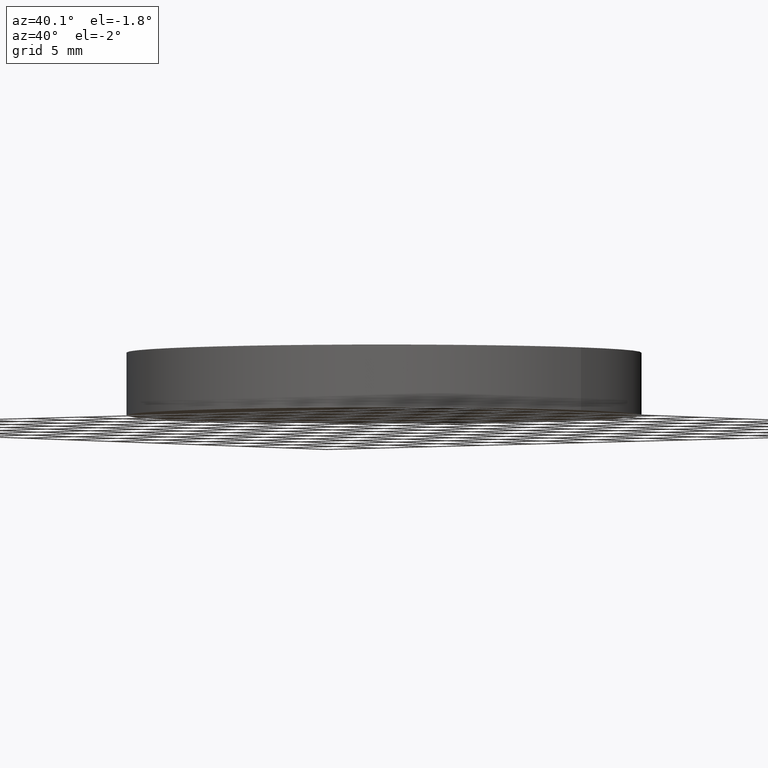
[diagram: clean part render]
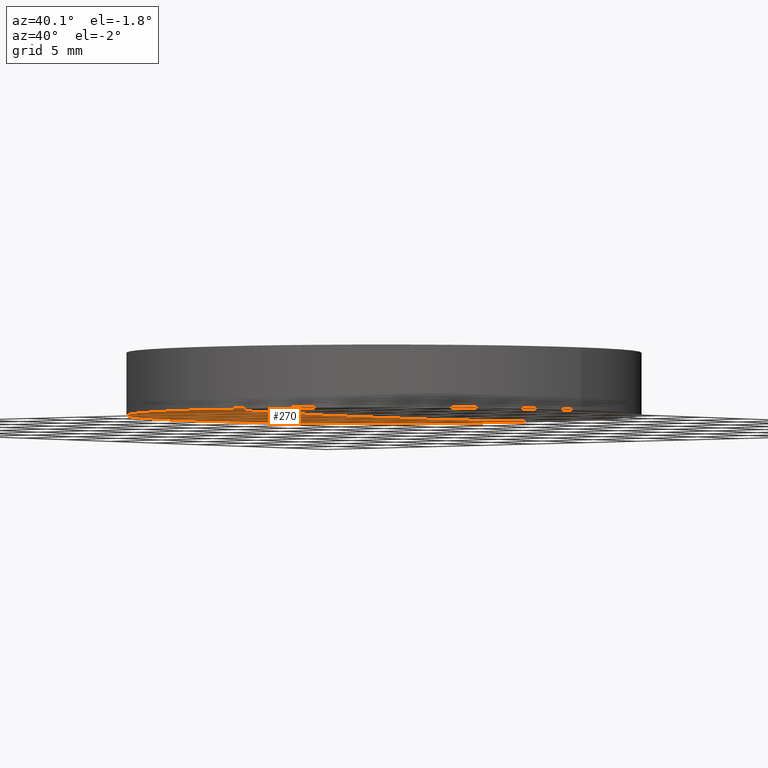
[diagram: same view with one face highlighted and labeled with its STEP entity id]
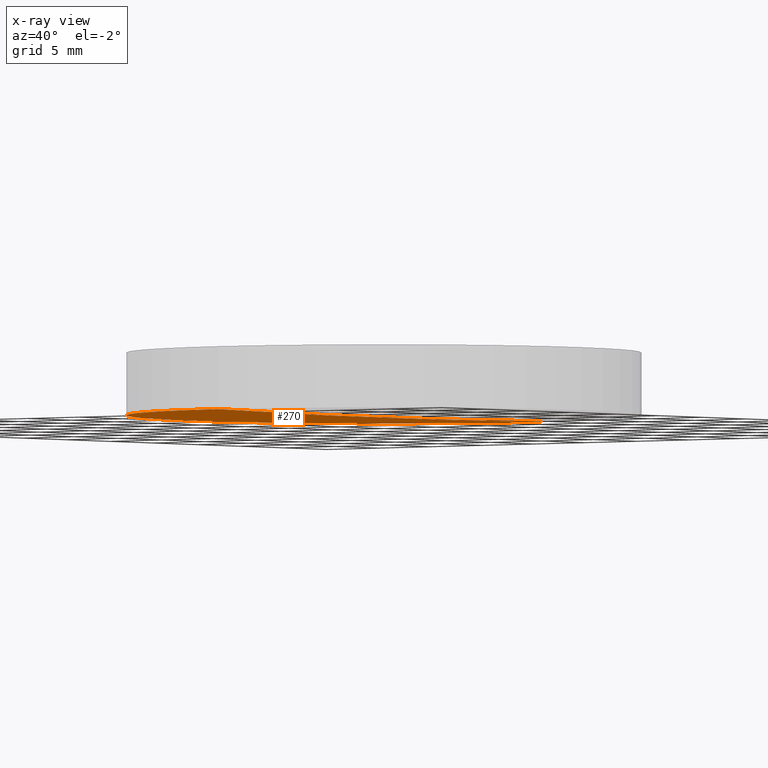
[diagram: x-ray of the same camera — body ghosted, the highlighted face saturated]
A machine part, auxiliary view. The second image highlights one B-rep face of the part: STEP entity #270.
The next image is the same camera in x-ray: the body ghosted, the highlighted face saturated — about 0% of this face is hidden behind the body in this view.
In plain terms, the highlighted face is a freeform B-spline surface patch.
Its self-contained STEP definition (entity closure, byte-faithful):
#1 = VERTEX_POINT ( 'NONE', #48 ) ;
#5 = DIRECTION ( 'NONE',  ( -1.456985596620939900E-018, -6.792982492034799900E-035, -1.000000000000000000 ) ) ;
#8 = VERTEX_POINT ( 'NONE', #273 ) ;
#11 = AXIS2_PLACEMENT_3D ( 'NONE', #174, #5, #237 ) ;
#17 = EDGE_CURVE ( 'NONE', #1, #8, #124, .T. ) ;
#37 = CIRCLE ( 'NONE', #134, 1037.000000000000000 ) ;
#45 =( BOUNDED_SURFACE ( )  B_SPLINE_SURFACE ( 3, 3, ( 
 ( #53, #186, #232, #102 ),
 ( #294, #127, #104, #143 ),
 ( #130, #129, #56, #50 ),
 ( #252, #275, #207, #272 ) ),
 .UNSPECIFIED., .F., .F., .F. ) 
 B_SPLINE_SURFACE_WITH_KNOTS ( ( 4, 4 ),
 ( 4, 4 ),
 ( 0.0000000000000000000, 1.000000000000000000 ),
 ( 0.0000000000000000000, 1.000000000000000000 ),
 .UNSPECIFIED. ) 
 GEOMETRIC_REPRESENTATION_ITEM ( )  RATIONAL_B_SPLINE_SURFACE ( (
 ( 1.000000000000000000, 0.9999715361965574300, 0.9999715361965574300, 1.000000000000000000),
 ( 0.9998847851211856200, 0.9998563245971967600, 0.9998563245971967600, 0.9998847851211856200),
 ( 0.9998847851211856200, 0.9998563245971967600, 0.9998563245971967600, 0.9998847851211856200),
 ( 1.000000000000000000, 0.9999715361965574300, 0.9999715361965574300, 1.000000000000000000) ) ) 
 REPRESENTATION_ITEM ( '' )  SURFACE ( )  );
#48 = CARTESIAN_POINT ( 'NONE',  ( -19.05000000000000400, 1.444773732675583000E-015, 0.1749918621754240600 ) ) ;
#50 = CARTESIAN_POINT ( 'NONE',  ( 8.673617379884035500E-014, 6.426931750395607600, -0.05974579827012176100 ) ) ;
#53 = CARTESIAN_POINT ( 'NONE',  ( -19.16097500826495200, -19.27857381669843300, 0.3562841417854567500 ) ) ;
#56 = CARTESIAN_POINT ( 'NONE',  ( -6.388918343689373300, 6.426931750395608500, -0.05974579827012020000 ) ) ;
#65 = ORIENTED_EDGE ( 'NONE', *, *, #266, .F. ) ;
#77 = DIRECTION ( 'NONE',  ( 0.0000000000000000000, -1.000000000000000000, -8.564883507233608400E-016 ) ) ;
#78 = DIRECTION ( 'NONE',  ( -1.456985596620939900E-018, -6.792982492034799900E-035, -1.000000000000000000 ) ) ;
#102 = CARTESIAN_POINT ( 'NONE',  ( 8.673617379884035500E-014, -19.27857381669843300, 0.1792167439958062500 ) ) ;
#104 = CARTESIAN_POINT ( 'NONE',  ( -6.388918343689373300, -6.426931750395570300, -0.05974579827012255900 ) ) ;
#124 = CIRCLE ( 'NONE', #260, 19.05000000000000100 ) ;
#127 = CARTESIAN_POINT ( 'NONE',  ( -12.77756390800491600, -6.426931750395570300, -0.0007080486260752468400 ) ) ;
#129 = CARTESIAN_POINT ( 'NONE',  ( -12.77756390800491600, 6.426931750395608500, -0.0007080486260728887000 ) ) ;
#130 = CARTESIAN_POINT ( 'NONE',  ( -19.16539115749171500, 6.426931750395607600, 0.1173624093453072000 ) ) ;
#134 = AXIS2_PLACEMENT_3D ( 'NONE', #251, #295, #77 ) ;
#143 = CARTESIAN_POINT ( 'NONE',  ( 8.673617379884035500E-014, -6.426931750395569400, -0.05974579827012412000 ) ) ;
#146 = CIRCLE ( 'NONE', #11, 19.05000000000000100 ) ;
#151 = EDGE_CURVE ( 'NONE', #169, #1, #146, .T. ) ;
#169 = VERTEX_POINT ( 'NONE', #246 ) ;
#174 = CARTESIAN_POINT ( 'NONE',  ( -4.662936703425659800E-015, -8.881784197001250400E-016, 0.1749918621754240300 ) ) ;
#182 = FACE_OUTER_BOUND ( 'NONE', #261, .T. ) ;
#186 = CARTESIAN_POINT ( 'NONE',  ( -12.77461966186307600, -19.27857381669842600, 0.2382408899773836900 ) ) ;
#207 = CARTESIAN_POINT ( 'NONE',  ( -6.387446189191116700, 19.27857381669846100, 0.1792167439958078100 ) ) ;
#209 = CARTESIAN_POINT ( 'NONE',  ( -4.662936703425659800E-015, -8.881784197001250400E-016, 0.1749918621754240300 ) ) ;
#224 = ORIENTED_EDGE ( 'NONE', *, *, #151, .T. ) ;
#232 = CARTESIAN_POINT ( 'NONE',  ( -6.387446189191116700, -19.27857381669842600, 0.1792167439958078100 ) ) ;
#233 = DIRECTION ( 'NONE',  ( 1.000000000000000000, 0.0000000000000000000, -1.422837496700137100E-018 ) ) ;
#237 = DIRECTION ( 'NONE',  ( 1.000000000000000000, 0.0000000000000000000, -1.422837496700137100E-018 ) ) ;
#246 = CARTESIAN_POINT ( 'NONE',  ( 3.410605131648479900E-013, -19.04999999999754900, 0.1749918621754119600 ) ) ;
#251 = CARTESIAN_POINT ( 'NONE',  ( 3.410605131648479900E-013, 1.136868377216160000E-013, 1037.000000000000000 ) ) ;
#252 = CARTESIAN_POINT ( 'NONE',  ( -19.16097500826495200, 19.27857381669846900, 0.3562841417854567500 ) ) ;
#256 = ORIENTED_EDGE ( 'NONE', *, *, #17, .T. ) ;
#260 = AXIS2_PLACEMENT_3D ( 'NONE', #209, #78, #233 ) ;
#261 = EDGE_LOOP ( 'NONE', ( #65, #224, #256 ) ) ;
#266 = EDGE_CURVE ( 'NONE', #169, #8, #37, .T. ) ;
#270 = ADVANCED_FACE ( 'NONE', ( #182 ), #45, .T. ) ;
#272 = CARTESIAN_POINT ( 'NONE',  ( 8.673617379884035500E-014, 19.27857381669846900, 0.1792167439958062500 ) ) ;
#273 = CARTESIAN_POINT ( 'NONE',  ( 3.410605131648479900E-013, 19.04999999999766700, 0.1749918621754119600 ) ) ;
#275 = CARTESIAN_POINT ( 'NONE',  ( -12.77461966186307600, 19.27857381669846100, 0.2382408899773836900 ) ) ;
#294 = CARTESIAN_POINT ( 'NONE',  ( -19.16539115749171500, -6.426931750395569400, 0.1173624093453048400 ) ) ;
#295 = DIRECTION ( 'NONE',  ( 1.000000000000000000, 0.0000000000000000000, 0.0000000000000000000 ) ) ;